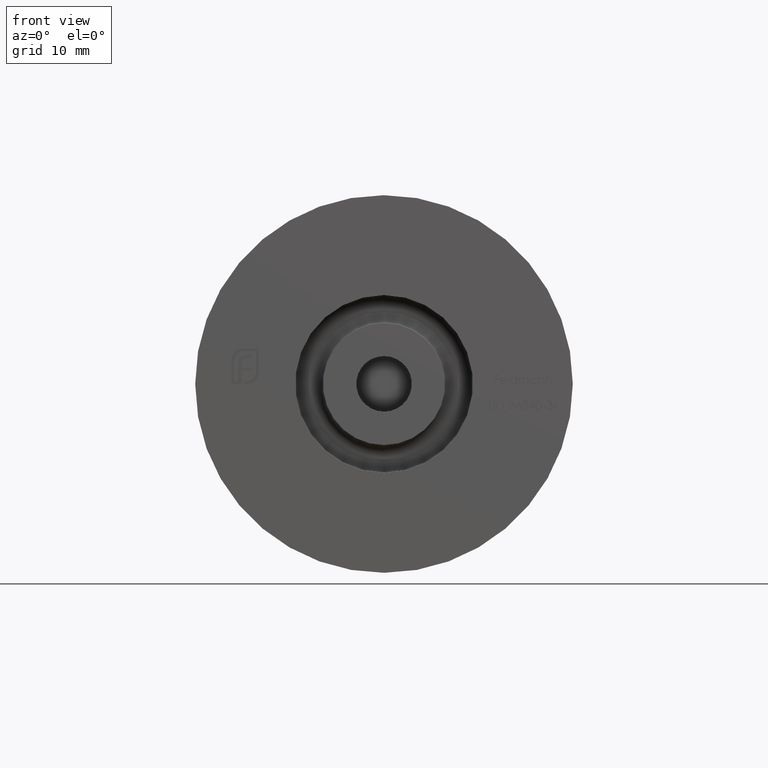
[diagram: clean part render]
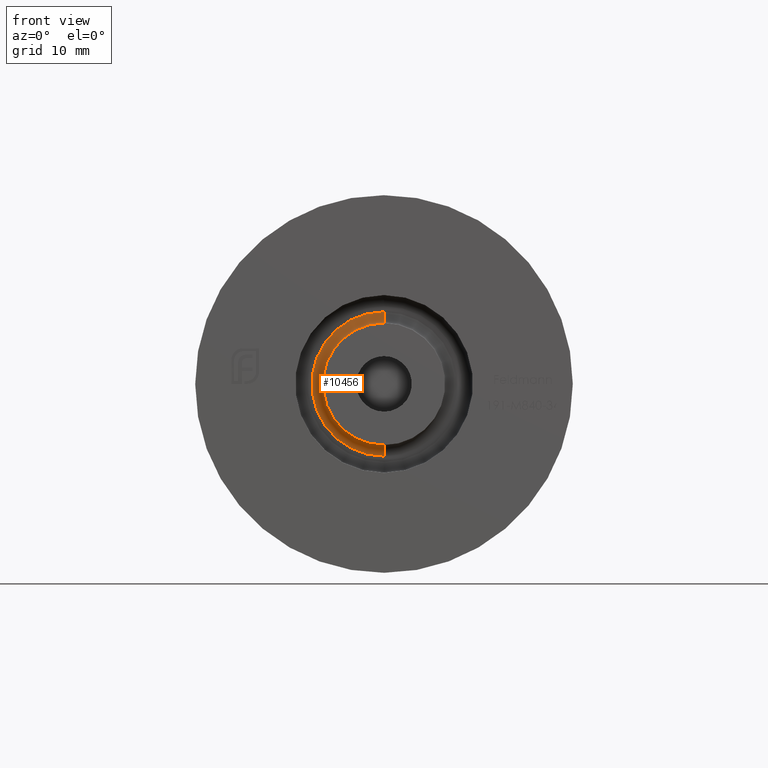
[diagram: same view with one face highlighted and labeled with its STEP entity id]
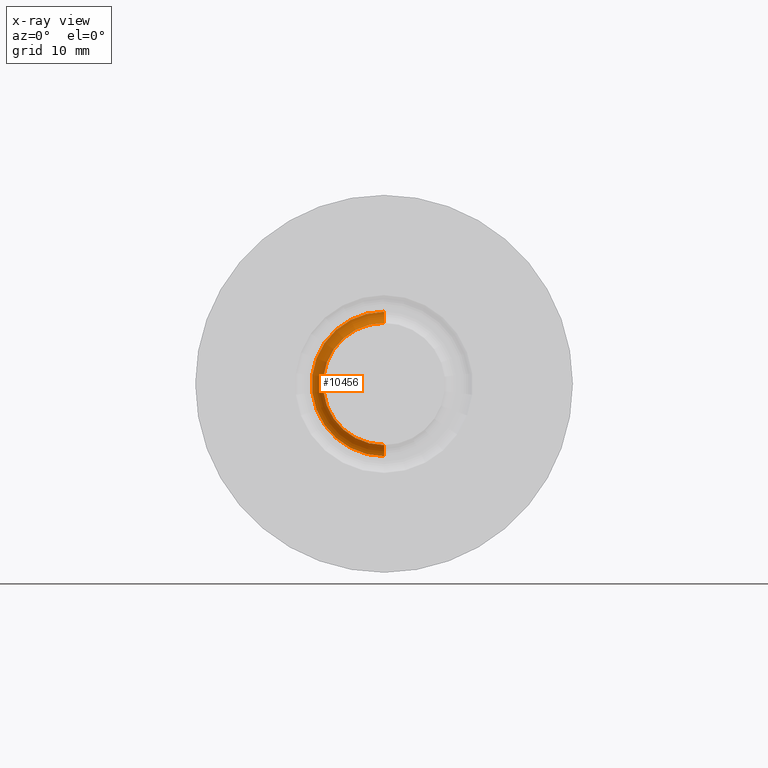
[diagram: x-ray of the same camera — body ghosted, the highlighted face saturated]
A machine part, front view. The second image highlights one B-rep face of the part: STEP entity #10456.
The next image is the same camera in x-ray: the body ghosted, the highlighted face saturated — about 0% of this face is hidden behind the body in this view.
In plain terms, the highlighted toroidal blend (fillet) surface has major radius 6.5 mm and minor (blend) radius 1 mm.
Its self-contained STEP definition (entity closure, byte-faithful):
#348 = DIRECTION ( 'NONE',  ( 0.000000000000000000, 0.000000000000000000, -1.000000000000000000 ) ) ;
#614 = EDGE_CURVE ( 'NONE', #15113, #15134, #5474, .T. ) ;
#855 = AXIS2_PLACEMENT_3D ( 'NONE', #14430, #8557, #2703 ) ;
#1378 = CARTESIAN_POINT ( 'NONE',  ( 0.000000000000000000, 2.000000000000001776, 5.500000000000000000 ) ) ;
#1863 = CARTESIAN_POINT ( 'NONE',  ( 0.000000000000000000, 3.000000000000000888, -6.500000000000000000 ) ) ;
#1988 = DIRECTION ( 'NONE',  ( 0.000000000000000000, 0.000000000000000000, -1.000000000000000000 ) ) ;
#2369 = EDGE_CURVE ( 'NONE', #5815, #13255, #5276, .T. ) ;
#2703 = DIRECTION ( 'NONE',  ( -1.224646799147353454E-16, 0.000000000000000000, -1.000000000000000000 ) ) ;
#2813 = DIRECTION ( 'NONE',  ( -1.000000000000000000, -0.000000000000000000, -0.000000000000000000 ) ) ;
#3058 = ORIENTED_EDGE ( 'NONE', *, *, #7756, .T. ) ;
#3162 = DIRECTION ( 'NONE',  ( 0.000000000000000000, 0.000000000000000000, 1.000000000000000000 ) ) ;
#3451 = ORIENTED_EDGE ( 'NONE', *, *, #10921, .F. ) ;
#4286 = CIRCLE ( 'NONE', #14564, 1.000000000000000000 ) ;
#4315 = AXIS2_PLACEMENT_3D ( 'NONE', #4361, #11254, #1988 ) ;
#4361 = CARTESIAN_POINT ( 'NONE',  ( 0.000000000000000000, 2.000000000000001776, 0.000000000000000000 ) ) ;
#4480 = ORIENTED_EDGE ( 'NONE', *, *, #2369, .F. ) ;
#5276 = CIRCLE ( 'NONE', #10200, 6.500000000000000000 ) ;
#5474 = CIRCLE ( 'NONE', #7465, 5.500000000000000000 ) ;
#5815 = VERTEX_POINT ( 'NONE', #1863 ) ;
#5979 = ORIENTED_EDGE ( 'NONE', *, *, #614, .F. ) ;
#6626 = CARTESIAN_POINT ( 'NONE',  ( 0.000000000000000000, 2.000000000000001776, -6.500000000000000000 ) ) ;
#7465 = AXIS2_PLACEMENT_3D ( 'NONE', #12937, #10632, #8303 ) ;
#7756 = EDGE_CURVE ( 'NONE', #15113, #13255, #10621, .T. ) ;
#8303 = DIRECTION ( 'NONE',  ( 0.000000000000000000, 0.000000000000000000, -1.000000000000000000 ) ) ;
#8557 = DIRECTION ( 'NONE',  ( 1.000000000000000000, 0.000000000000000000, -1.224646799147353207E-16 ) ) ;
#10008 = TOROIDAL_SURFACE ( 'NONE', #4315, 6.500000000000000000, 1.000000000000000000 ) ;
#10200 = AXIS2_PLACEMENT_3D ( 'NONE', #10923, #13086, #348 ) ;
#10398 = EDGE_LOOP ( 'NONE', ( #5979, #3058, #4480, #3451 ) ) ;
#10456 = ADVANCED_FACE ( 'NONE', ( #14946 ), #10008, .F. ) ;
#10621 = CIRCLE ( 'NONE', #855, 1.000000000000000000 ) ;
#10632 = DIRECTION ( 'NONE',  ( 0.000000000000000000, -1.000000000000000000, 0.000000000000000000 ) ) ;
#10921 = EDGE_CURVE ( 'NONE', #15134, #5815, #4286, .T. ) ;
#10923 = CARTESIAN_POINT ( 'NONE',  ( 0.000000000000000000, 3.000000000000000000, 0.000000000000000000 ) ) ;
#11254 = DIRECTION ( 'NONE',  ( 0.000000000000000000, -1.000000000000000000, 0.000000000000000000 ) ) ;
#12937 = CARTESIAN_POINT ( 'NONE',  ( 0.000000000000000000, 2.000000000000001776, 0.000000000000000000 ) ) ;
#13086 = DIRECTION ( 'NONE',  ( -0.000000000000000000, 1.000000000000000000, -0.000000000000000000 ) ) ;
#13197 = CARTESIAN_POINT ( 'NONE',  ( 6.735557395310442023E-16, 2.000000000000001776, -5.500000000000000000 ) ) ;
#13255 = VERTEX_POINT ( 'NONE', #14413 ) ;
#14413 = CARTESIAN_POINT ( 'NONE',  ( 7.960204194457795477E-16, 3.000000000000000888, 6.500000000000000000 ) ) ;
#14430 = CARTESIAN_POINT ( 'NONE',  ( 7.960204194457795477E-16, 2.000000000000001776, 6.500000000000000000 ) ) ;
#14564 = AXIS2_PLACEMENT_3D ( 'NONE', #6626, #2813, #3162 ) ;
#14946 = FACE_OUTER_BOUND ( 'NONE', #10398, .T. ) ;
#15113 = VERTEX_POINT ( 'NONE', #1378 ) ;
#15134 = VERTEX_POINT ( 'NONE', #13197 ) ;